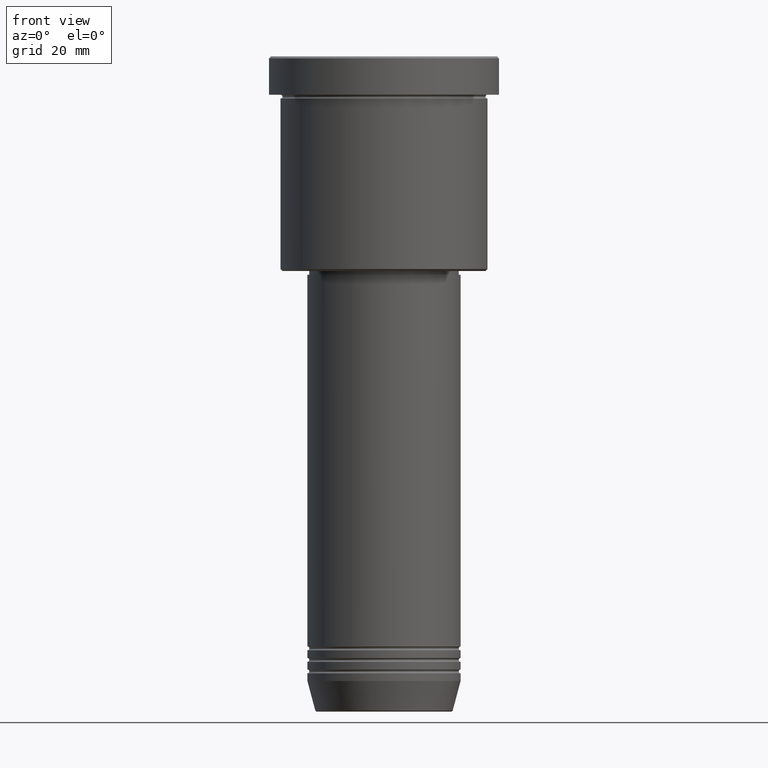
[diagram: clean part render]
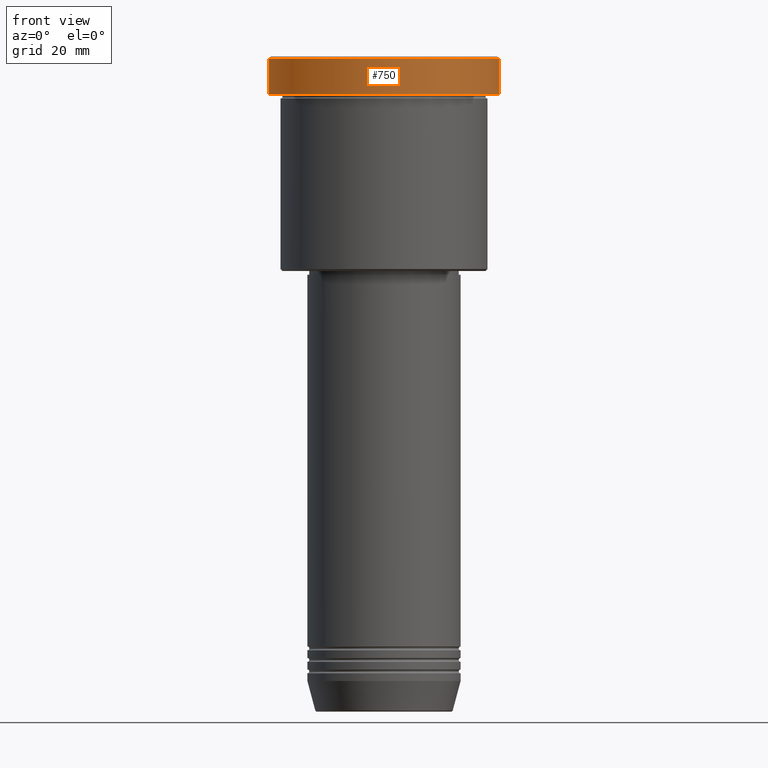
[diagram: same view with one face highlighted and labeled with its STEP entity id]
A machine part, front view. The second image highlights one B-rep face of the part: STEP entity #750.
In plain terms, the highlighted cylindrical surface (partial cylindrical patch) has radius 30 mm, axis along (-0, -0, 1).
Its self-contained STEP definition (entity closure, byte-faithful):
#1 = VERTEX_POINT ( 'NONE', #956 ) ;
#32 = FACE_OUTER_BOUND ( 'NONE', #117, .T. ) ;
#46 = AXIS2_PLACEMENT_3D ( 'NONE', #253, #952, #783 ) ;
#56 = ORIENTED_EDGE ( 'NONE', *, *, #423, .T. ) ;
#74 = VERTEX_POINT ( 'NONE', #521 ) ;
#95 = LINE ( 'NONE', #470, #902 ) ;
#115 = CARTESIAN_POINT ( 'NONE',  ( 0.000000000000000000, 0.000000000000000000, -0.5000000000000350830 ) ) ;
#117 = EDGE_LOOP ( 'NONE', ( #839, #917, #56, #736 ) ) ;
#231 = DIRECTION ( 'NONE',  ( -0.000000000000000000, -0.000000000000000000, 1.000000000000000000 ) ) ;
#253 = CARTESIAN_POINT ( 'NONE',  ( 0.000000000000000000, 0.000000000000000000, -9.999999999999992895 ) ) ;
#378 = AXIS2_PLACEMENT_3D ( 'NONE', #945, #934, #847 ) ;
#423 = EDGE_CURVE ( 'NONE', #1, #703, #711, .T. ) ;
#428 = EDGE_CURVE ( 'NONE', #986, #1, #1089, .T. ) ;
#470 = CARTESIAN_POINT ( 'NONE',  ( -30.00000000000000000, 3.673940397442059178E-15, 0.000000000000000000 ) ) ;
#492 = DIRECTION ( 'NONE',  ( 0.000000000000000000, 0.000000000000000000, -1.000000000000000000 ) ) ;
#513 = CARTESIAN_POINT ( 'NONE',  ( -30.00000000000000000, 3.673940397442059178E-15, -9.999999999999992895 ) ) ;
#521 = CARTESIAN_POINT ( 'NONE',  ( -30.00000000000000000, 3.673940397442059178E-15, -0.5000000000000350830 ) ) ;
#523 = CARTESIAN_POINT ( 'NONE',  ( 30.00000000000000000, 0.000000000000000000, 0.000000000000000000 ) ) ;
#606 = VECTOR ( 'NONE', #231, 1000.000000000000000 ) ;
#681 = CIRCLE ( 'NONE', #959, 30.00000000000000000 ) ;
#691 = EDGE_CURVE ( 'NONE', #986, #74, #95, .T. ) ;
#703 = VERTEX_POINT ( 'NONE', #1068 ) ;
#711 = LINE ( 'NONE', #523, #606 ) ;
#736 = ORIENTED_EDGE ( 'NONE', *, *, #822, .T. ) ;
#750 = ADVANCED_FACE ( 'NONE', ( #32 ), #1107, .T. ) ;
#751 = DIRECTION ( 'NONE',  ( 1.000000000000000000, 0.000000000000000000, 0.000000000000000000 ) ) ;
#783 = DIRECTION ( 'NONE',  ( 1.000000000000000000, 0.000000000000000000, 0.000000000000000000 ) ) ;
#822 = EDGE_CURVE ( 'NONE', #703, #74, #681, .T. ) ;
#827 = DIRECTION ( 'NONE',  ( -0.000000000000000000, -0.000000000000000000, 1.000000000000000000 ) ) ;
#839 = ORIENTED_EDGE ( 'NONE', *, *, #691, .F. ) ;
#847 = DIRECTION ( 'NONE',  ( 1.000000000000000000, 0.000000000000000000, 0.000000000000000000 ) ) ;
#902 = VECTOR ( 'NONE', #827, 1000.000000000000000 ) ;
#917 = ORIENTED_EDGE ( 'NONE', *, *, #428, .T. ) ;
#934 = DIRECTION ( 'NONE',  ( -0.000000000000000000, -0.000000000000000000, 1.000000000000000000 ) ) ;
#945 = CARTESIAN_POINT ( 'NONE',  ( 0.000000000000000000, 0.000000000000000000, 0.000000000000000000 ) ) ;
#952 = DIRECTION ( 'NONE',  ( -0.000000000000000000, -0.000000000000000000, 1.000000000000000000 ) ) ;
#956 = CARTESIAN_POINT ( 'NONE',  ( 30.00000000000000000, 0.000000000000000000, -9.999999999999992895 ) ) ;
#959 = AXIS2_PLACEMENT_3D ( 'NONE', #115, #492, #751 ) ;
#986 = VERTEX_POINT ( 'NONE', #513 ) ;
#1068 = CARTESIAN_POINT ( 'NONE',  ( 30.00000000000000000, 0.000000000000000000, -0.5000000000000350830 ) ) ;
#1089 = CIRCLE ( 'NONE', #46, 30.00000000000000000 ) ;
#1107 = CYLINDRICAL_SURFACE ( 'NONE', #378, 30.00000000000000000 ) ;